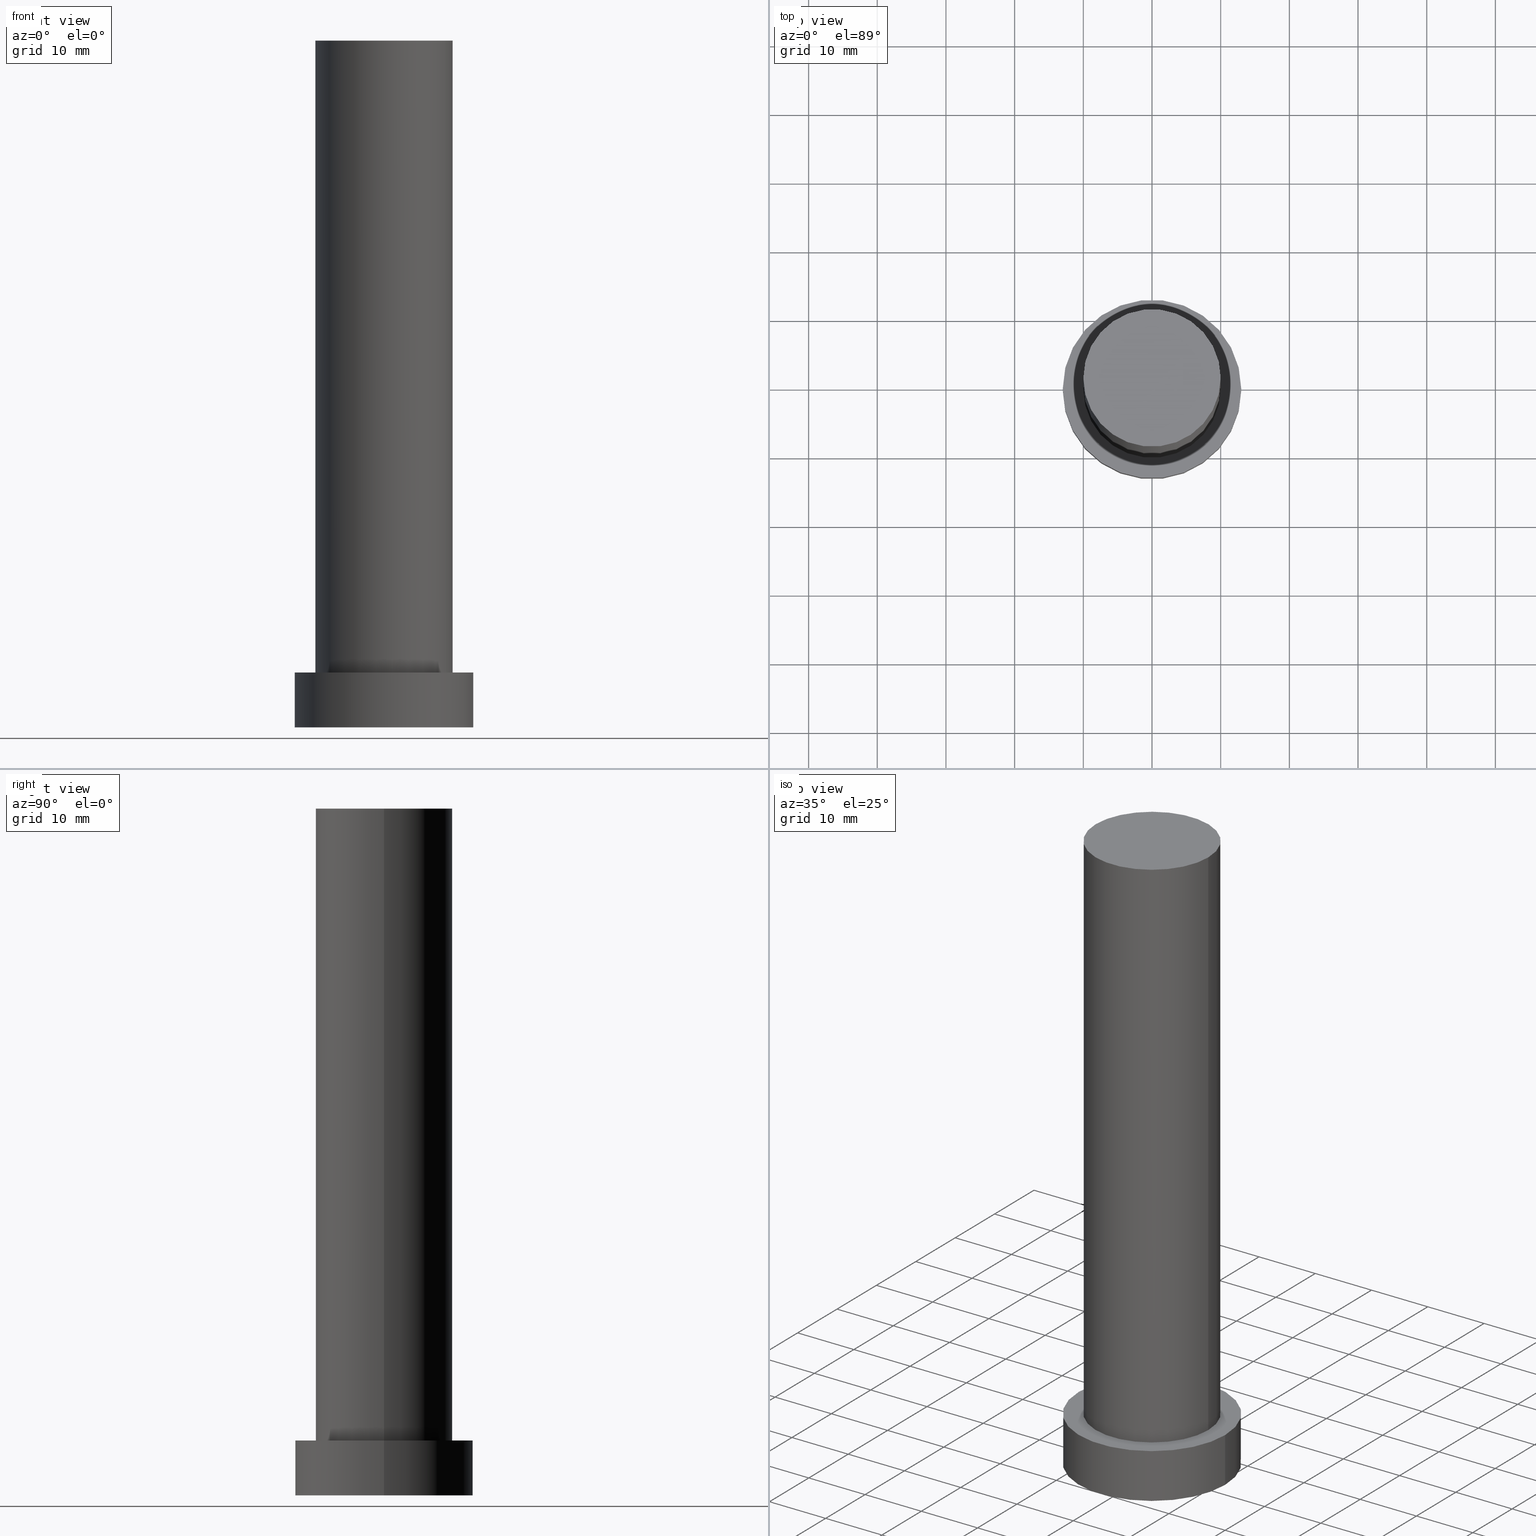
[diagram: canonical four-view strip — front | top / right | iso, engineering-drawing reading convention]
A machine part, canonical four-view strip (front | top / right | iso — engineering-drawing reading convention). The complete STEP part file that produces these views, byte-faithful:
ISO-10303-21;
HEADER;
FILE_DESCRIPTION (( 'STEP AP203' ),
    '1' );
FILE_NAME ('dd8e.STEP',
    '2023-02-13T07:34:53',
    ( '' ),
    ( '' ),
    'SwSTEP 2.0',
    'SolidWorks 2019',
    '' );
FILE_SCHEMA (( 'CONFIG_CONTROL_DESIGN' ));
ENDSEC;

DATA;
#1 = CLOSED_SHELL ( 'NONE', ( #86, #241, #217, #138, #32, #99, #222 ) ) ;
#2 = DATE_AND_TIME ( #63, #94 ) ;
#3 = PERSON_AND_ORGANIZATION ( #66, #104 ) ;
#4 = AXIS2_PLACEMENT_3D ( 'NONE', #89, #137, #244 ) ;
#5 = APPROVAL_ROLE ( '' ) ;
#6 = ORIENTED_EDGE ( 'NONE', *, *, #163, .T. ) ;
#7 = VERTEX_POINT ( 'NONE', #120 ) ;
#8 = PERSON_AND_ORGANIZATION ( #66, #104 ) ;
#9 = DIRECTION ( 'NONE',  ( 1.000000000000000000, 0.000000000000000000, 0.000000000000000000 ) ) ;
#10 = LINE ( 'NONE', #71, #80 ) ;
#11 = ORIENTED_EDGE ( 'NONE', *, *, #252, .T. ) ;
#12 = CARTESIAN_POINT ( 'NONE',  ( 0.000000000000000000, 0.000000000000000000, 8.000000000000000000 ) ) ;
#13 = CARTESIAN_POINT ( 'NONE',  ( -13.00000000000000178, 0.000000000000000000, 0.000000000000000000 ) ) ;
#14 = EDGE_CURVE ( 'NONE', #55, #204, #79, .T. ) ;
#15 = DIRECTION ( 'NONE',  ( -0.000000000000000000, -0.000000000000000000, -1.000000000000000000 ) ) ;
#16 = APPROVAL ( #235, 'NEUR�EN�' ) ;
#17 = CARTESIAN_POINT ( 'NONE',  ( 0.000000000000000000, 0.000000000000000000, 0.000000000000000000 ) ) ;
#18 = EDGE_CURVE ( 'NONE', #179, #55, #141, .T. ) ;
#19 = CC_DESIGN_PERSON_AND_ORGANIZATION_ASSIGNMENT ( #237, #106, ( #132 ) ) ;
#20 = DIRECTION ( 'NONE',  ( 1.000000000000000000, 0.000000000000000000, 0.000000000000000000 ) ) ;
#21 = CIRCLE ( 'NONE', #123, 10.00000000000000000 ) ;
#22 = APPROVAL_ROLE ( '' ) ;
#23 = PERSON_AND_ORGANIZATION ( #66, #104 ) ;
#24 = AXIS2_PLACEMENT_3D ( 'NONE', #186, #31, #188 ) ;
#25 = DATE_TIME_ROLE ( 'creation_date' ) ;
#26 = MANIFOLD_SOLID_BREP ( 'P�idat vysunut�m3', #1 ) ;
#27 = CARTESIAN_POINT ( 'NONE',  ( 0.000000000000000000, 0.000000000000000000, 8.000000000000000000 ) ) ;
#28 = FACE_OUTER_BOUND ( 'NONE', #140, .T. ) ;
#29 = CARTESIAN_POINT ( 'NONE',  ( 10.00000000000000000, 1.224646799147353256E-15, 8.000000000000000000 ) ) ;
#30 = PRODUCT_DEFINITION_SHAPE ( 'NONE', 'NONE',  #132 ) ;
#31 = DIRECTION ( 'NONE',  ( 0.000000000000000000, 0.000000000000000000, 1.000000000000000000 ) ) ;
#32 = ADVANCED_FACE ( 'NONE', ( #210 ), #254, .F. ) ;
#33 = ORIENTED_EDGE ( 'NONE', *, *, #170, .T. ) ;
#34 = DIRECTION ( 'NONE',  ( -0.000000000000000000, -0.000000000000000000, -1.000000000000000000 ) ) ;
#35 = EDGE_CURVE ( 'NONE', #238, #204, #100, .T. ) ;
#36 = ORIENTED_EDGE ( 'NONE', *, *, #39, .F. ) ;
#37 = ORIENTED_EDGE ( 'NONE', *, *, #14, .T. ) ;
#38 =( GEOMETRIC_REPRESENTATION_CONTEXT ( 3 ) GLOBAL_UNCERTAINTY_ASSIGNED_CONTEXT ( ( #215 ) ) GLOBAL_UNIT_ASSIGNED_CONTEXT ( ( #150, #130, #133 ) ) REPRESENTATION_CONTEXT ( 'NONE', 'WORKASPACE' ) );
#39 = EDGE_CURVE ( 'NONE', #77, #228, #21, .T. ) ;
#40 = PERSON_AND_ORGANIZATION_ROLE ( 'creator' ) ;
#41 = CC_DESIGN_PERSON_AND_ORGANIZATION_ASSIGNMENT ( #60, #84, ( #165 ) ) ;
#42 = PERSON_AND_ORGANIZATION_ROLE ( 'design_owner' ) ;
#43 = DATE_AND_TIME ( #81, #226 ) ;
#44 = CALENDAR_DATE ( 2023, 13, 2 ) ;
#45 = SHAPE_DEFINITION_REPRESENTATION ( #30, #102 ) ;
#46 = DIRECTION ( 'NONE',  ( -0.000000000000000000, -0.000000000000000000, -1.000000000000000000 ) ) ;
#47 = AXIS2_PLACEMENT_3D ( 'NONE', #183, #249, #153 ) ;
#48 = VERTEX_POINT ( 'NONE', #253 ) ;
#49 = CARTESIAN_POINT ( 'NONE',  ( 0.000000000000000000, 0.000000000000000000, 0.000000000000000000 ) ) ;
#50 = CARTESIAN_POINT ( 'NONE',  ( 0.000000000000000000, 0.000000000000000000, 8.000000000000000000 ) ) ;
#51 = DIRECTION ( 'NONE',  ( -1.000000000000000000, 0.000000000000000000, 0.000000000000000000 ) ) ;
#52 = CC_DESIGN_SECURITY_CLASSIFICATION ( #165, ( #69 ) ) ;
#53 = CARTESIAN_POINT ( 'NONE',  ( 0.000000000000000000, 0.000000000000000000, 100.0000000000000000 ) ) ;
#54 = ORIENTED_EDGE ( 'NONE', *, *, #245, .T. ) ;
#55 = VERTEX_POINT ( 'NONE', #121 ) ;
#56 = AXIS2_PLACEMENT_3D ( 'NONE', #67, #46, #51 ) ;
#57 = DATE_TIME_ROLE ( 'classification_date' ) ;
#58 = PRODUCT_RELATED_PRODUCT_CATEGORY ( 'detail', '', ( #119 ) ) ;
#59 = AXIS2_PLACEMENT_3D ( 'NONE', #27, #182, #9 ) ;
#60 = PERSON_AND_ORGANIZATION ( #66, #104 ) ;
#61 = EDGE_LOOP ( 'NONE', ( #113, #108, #98, #192 ) ) ;
#62 = PERSON_AND_ORGANIZATION ( #66, #104 ) ;
#63 = CALENDAR_DATE ( 2023, 13, 2 ) ;
#64 = ORIENTED_EDGE ( 'NONE', *, *, #195, .T. ) ;
#65 = DIRECTION ( 'NONE',  ( 0.000000000000000000, 0.000000000000000000, 1.000000000000000000 ) ) ;
#66 = PERSON ( 'NEUR�EN�', 'NEUR�EN�', 'NEUR�EN�', ('NEUR�EN�'), ('NEUR�EN�'), ('NEUR�EN�') ) ;
#67 = CARTESIAN_POINT ( 'NONE',  ( 0.000000000000000000, 0.000000000000000000, 8.000000000000000000 ) ) ;
#68 = DIRECTION ( 'NONE',  ( -0.000000000000000000, -0.000000000000000000, -1.000000000000000000 ) ) ;
#69 = PRODUCT_DEFINITION_FORMATION_WITH_SPECIFIED_SOURCE ( 'LIBOVOLN�', '', #119, .NOT_KNOWN. ) ;
#70 = ORIENTED_EDGE ( 'NONE', *, *, #128, .F. ) ;
#71 = CARTESIAN_POINT ( 'NONE',  ( -13.00000000000000178, 0.000000000000000000, 8.000000000000000000 ) ) ;
#72 = DIRECTION ( 'NONE',  ( 1.000000000000000000, 0.000000000000000000, -0.000000000000000000 ) ) ;
#73 = FACE_OUTER_BOUND ( 'NONE', #149, .T. ) ;
#74 = CIRCLE ( 'NONE', #59, 10.00000000000000000 ) ;
#75 = FACE_OUTER_BOUND ( 'NONE', #88, .T. ) ;
#76 = AXIS2_PLACEMENT_3D ( 'NONE', #49, #87, #115 ) ;
#77 = VERTEX_POINT ( 'NONE', #251 ) ;
#78 = DIRECTION ( 'NONE',  ( 1.000000000000000000, 0.000000000000000000, -0.000000000000000000 ) ) ;
#79 = LINE ( 'NONE', #97, #246 ) ;
#80 = VECTOR ( 'NONE', #207, 1000.000000000000000 ) ;
#81 = CALENDAR_DATE ( 2023, 13, 2 ) ;
#82 = APPROVAL_DATE_TIME ( #43, #198 ) ;
#83 = APPROVAL ( #127, 'NEUR�EN�' ) ;
#84 = PERSON_AND_ORGANIZATION_ROLE ( 'classification_officer' ) ;
#85 = EDGE_LOOP ( 'NONE', ( #212, #6, #11, #142 ) ) ;
#86 = ADVANCED_FACE ( 'NONE', ( #177 ), #255, .T. ) ;
#87 = DIRECTION ( 'NONE',  ( 0.000000000000000000, 0.000000000000000000, 1.000000000000000000 ) ) ;
#88 = EDGE_LOOP ( 'NONE', ( #173, #139, #211, #157 ) ) ;
#89 = CARTESIAN_POINT ( 'NONE',  ( 0.000000000000000000, 0.000000000000000000, 100.0000000000000000 ) ) ;
#90 = CIRCLE ( 'NONE', #203, 10.00000000000000000 ) ;
#91 = CARTESIAN_POINT ( 'NONE',  ( 0.000000000000000000, 0.000000000000000000, 100.0000000000000000 ) ) ;
#92 = PLANE ( 'NONE',  #131 ) ;
#93 = DIRECTION ( 'NONE',  ( 0.000000000000000000, 0.000000000000000000, 1.000000000000000000 ) ) ;
#94 = LOCAL_TIME ( 8, 34, 53.00000000000000000, #109 ) ;
#95 = DIRECTION ( 'NONE',  ( 1.000000000000000000, 0.000000000000000000, 0.000000000000000000 ) ) ;
#96 = AXIS2_PLACEMENT_3D ( 'NONE', #53, #114, #112 ) ;
#97 = CARTESIAN_POINT ( 'NONE',  ( 13.00000000000000178, 1.592040838891559293E-15, 8.000000000000000000 ) ) ;
#98 = ORIENTED_EDGE ( 'NONE', *, *, #187, .T. ) ;
#99 = ADVANCED_FACE ( 'NONE', ( #75 ), #156, .T. ) ;
#100 = CIRCLE ( 'NONE', #239, 13.00000000000000178 ) ;
#101 = AXIS2_PLACEMENT_3D ( 'NONE', #12, #68, #171 ) ;
#102 = ADVANCED_BREP_SHAPE_REPRESENTATION ( 'dd8e', ( #26, #124 ), #38 ) ;
#103 = PERSON_AND_ORGANIZATION ( #66, #104 ) ;
#104 = ORGANIZATION ( 'NEUR�EN�', 'NEUR�EN�', '' ) ;
#105 = AXIS2_PLACEMENT_3D ( 'NONE', #227, #15, #172 ) ;
#106 = PERSON_AND_ORGANIZATION_ROLE ( 'creator' ) ;
#107 = CALENDAR_DATE ( 2023, 13, 2 ) ;
#108 = ORIENTED_EDGE ( 'NONE', *, *, #18, .F. ) ;
#109 = COORDINATED_UNIVERSAL_TIME_OFFSET ( 1, 0, .AHEAD. ) ;
#110 = CARTESIAN_POINT ( 'NONE',  ( 13.00000000000000178, 1.592040838891559293E-15, 0.000000000000000000 ) ) ;
#111 = CC_DESIGN_APPROVAL ( #83, ( #69 ) ) ;
#112 = DIRECTION ( 'NONE',  ( -1.000000000000000000, 0.000000000000000000, 0.000000000000000000 ) ) ;
#113 = ORIENTED_EDGE ( 'NONE', *, *, #14, .F. ) ;
#114 = DIRECTION ( 'NONE',  ( -0.000000000000000000, -0.000000000000000000, -1.000000000000000000 ) ) ;
#115 = DIRECTION ( 'NONE',  ( 1.000000000000000000, 0.000000000000000000, 0.000000000000000000 ) ) ;
#116 = CARTESIAN_POINT ( 'NONE',  ( 0.000000000000000000, 0.000000000000000000, 8.000000000000000000 ) ) ;
#117 = ORIENTED_EDGE ( 'NONE', *, *, #128, .T. ) ;
#118 = ORIENTED_EDGE ( 'NONE', *, *, #187, .F. ) ;
#119 = PRODUCT ( 'dd8e', 'dd8e', '', ( #218 ) ) ;
#120 = CARTESIAN_POINT ( 'NONE',  ( 10.00000000000000000, 1.224646799147353256E-15, 100.0000000000000000 ) ) ;
#121 = CARTESIAN_POINT ( 'NONE',  ( 13.00000000000000178, 1.592040838891559293E-15, 8.000000000000000000 ) ) ;
#122 = EDGE_CURVE ( 'NONE', #48, #77, #224, .T. ) ;
#123 = AXIS2_PLACEMENT_3D ( 'NONE', #116, #93, #95 ) ;
#124 = AXIS2_PLACEMENT_3D ( 'NONE', #199, #65, #164 ) ;
#125 = APPLICATION_PROTOCOL_DEFINITION ( 'international standard', 'config_control_design', 1994, #176 ) ;
#126 = DESIGN_CONTEXT ( 'detailed design', #176, 'design' ) ;
#127 = APPROVAL_STATUS ( 'not_yet_approved' ) ;
#128 = EDGE_CURVE ( 'NONE', #55, #179, #143, .T. ) ;
#129 = COORDINATED_UNIVERSAL_TIME_OFFSET ( 1, 0, .AHEAD. ) ;
#130 =( NAMED_UNIT ( * ) PLANE_ANGLE_UNIT ( ) SI_UNIT ( $, .RADIAN. ) );
#131 = AXIS2_PLACEMENT_3D ( 'NONE', #50, #250, #72 ) ;
#132 = PRODUCT_DEFINITION ( 'NEZN�M�', '', #69, #126 ) ;
#133 =( NAMED_UNIT ( * ) SI_UNIT ( $, .STERADIAN. ) SOLID_ANGLE_UNIT ( ) );
#134 = CARTESIAN_POINT ( 'NONE',  ( -13.00000000000000178, 0.000000000000000000, 8.000000000000000000 ) ) ;
#135 = FACE_BOUND ( 'NONE', #243, .T. ) ;
#136 = AXIS2_PLACEMENT_3D ( 'NONE', #190, #193, #78 ) ;
#137 = DIRECTION ( 'NONE',  ( 0.000000000000000000, 0.000000000000000000, 1.000000000000000000 ) ) ;
#138 = ADVANCED_FACE ( 'NONE', ( #135, #151 ), #92, .T. ) ;
#139 = ORIENTED_EDGE ( 'NONE', *, *, #245, .F. ) ;
#140 = EDGE_LOOP ( 'NONE', ( #70, #37, #33, #118 ) ) ;
#141 = CIRCLE ( 'NONE', #209, 13.00000000000000178 ) ;
#142 = ORIENTED_EDGE ( 'NONE', *, *, #122, .F. ) ;
#143 = CIRCLE ( 'NONE', #47, 13.00000000000000178 ) ;
#144 = COORDINATED_UNIVERSAL_TIME_OFFSET ( 1, 0, .AHEAD. ) ;
#145 = APPROVAL_ROLE ( '' ) ;
#146 = APPROVAL_DATE_TIME ( #2, #16 ) ;
#147 = ORIENTED_EDGE ( 'NONE', *, *, #18, .T. ) ;
#148 = APPROVAL_STATUS ( 'not_yet_approved' ) ;
#149 = EDGE_LOOP ( 'NONE', ( #54, #64 ) ) ;
#150 =( LENGTH_UNIT ( ) NAMED_UNIT ( * ) SI_UNIT ( .MILLI., .METRE. ) );
#151 = FACE_OUTER_BOUND ( 'NONE', #185, .T. ) ;
#152 = CC_DESIGN_APPROVAL ( #198, ( #132 ) ) ;
#153 = DIRECTION ( 'NONE',  ( 1.000000000000000000, 0.000000000000000000, 0.000000000000000000 ) ) ;
#154 = PLANE ( 'NONE',  #24 ) ;
#155 = DIRECTION ( 'NONE',  ( 0.000000000000000000, 0.000000000000000000, 1.000000000000000000 ) ) ;
#156 = CYLINDRICAL_SURFACE ( 'NONE', #96, 10.00000000000000000 ) ;
#157 = ORIENTED_EDGE ( 'NONE', *, *, #39, .T. ) ;
#158 = DIRECTION ( 'NONE',  ( 0.000000000000000000, 0.000000000000000000, 1.000000000000000000 ) ) ;
#159 = DIRECTION ( 'NONE',  ( 0.000000000000000000, 0.000000000000000000, 1.000000000000000000 ) ) ;
#160 = VECTOR ( 'NONE', #202, 1000.000000000000000 ) ;
#161 = PERSON_AND_ORGANIZATION ( #66, #104 ) ;
#162 = SECURITY_CLASSIFICATION_LEVEL ( 'unclassified' ) ;
#163 = EDGE_CURVE ( 'NONE', #7, #228, #208, .T. ) ;
#164 = DIRECTION ( 'NONE',  ( 1.000000000000000000, 0.000000000000000000, 0.000000000000000000 ) ) ;
#165 = SECURITY_CLASSIFICATION ( '', '', #162 ) ;
#166 = CYLINDRICAL_SURFACE ( 'NONE', #101, 13.00000000000000178 ) ;
#167 = CYLINDRICAL_SURFACE ( 'NONE', #56, 13.00000000000000178 ) ;
#168 = CC_DESIGN_PERSON_AND_ORGANIZATION_ASSIGNMENT ( #8, #40, ( #69 ) ) ;
#169 = DIRECTION ( 'NONE',  ( -0.000000000000000000, -0.000000000000000000, -1.000000000000000000 ) ) ;
#170 = EDGE_CURVE ( 'NONE', #204, #238, #191, .T. ) ;
#171 = DIRECTION ( 'NONE',  ( -1.000000000000000000, 0.000000000000000000, 0.000000000000000000 ) ) ;
#172 = DIRECTION ( 'NONE',  ( -1.000000000000000000, 0.000000000000000000, 0.000000000000000000 ) ) ;
#173 = ORIENTED_EDGE ( 'NONE', *, *, #163, .F. ) ;
#174 = CC_DESIGN_PERSON_AND_ORGANIZATION_ASSIGNMENT ( #23, #42, ( #119 ) ) ;
#175 = CARTESIAN_POINT ( 'NONE',  ( 0.000000000000000000, 0.000000000000000000, 8.000000000000000000 ) ) ;
#176 = APPLICATION_CONTEXT ( 'configuration controlled 3d designs of mechanical parts and assemblies' ) ;
#177 = FACE_OUTER_BOUND ( 'NONE', #85, .T. ) ;
#178 = DATE_AND_TIME ( #220, #200 ) ;
#179 = VERTEX_POINT ( 'NONE', #134 ) ;
#180 = COORDINATED_UNIVERSAL_TIME_OFFSET ( 1, 0, .AHEAD. ) ;
#181 = DATE_AND_TIME ( #107, #230 ) ;
#182 = DIRECTION ( 'NONE',  ( 0.000000000000000000, 0.000000000000000000, 1.000000000000000000 ) ) ;
#183 = CARTESIAN_POINT ( 'NONE',  ( 0.000000000000000000, 0.000000000000000000, 8.000000000000000000 ) ) ;
#184 = EDGE_LOOP ( 'NONE', ( #229, #189 ) ) ;
#185 = EDGE_LOOP ( 'NONE', ( #147, #117 ) ) ;
#186 = CARTESIAN_POINT ( 'NONE',  ( 0.000000000000000000, 0.000000000000000000, 100.0000000000000000 ) ) ;
#187 = EDGE_CURVE ( 'NONE', #179, #238, #10, .T. ) ;
#188 = DIRECTION ( 'NONE',  ( 1.000000000000000000, 0.000000000000000000, -0.000000000000000000 ) ) ;
#189 = ORIENTED_EDGE ( 'NONE', *, *, #170, .F. ) ;
#190 = CARTESIAN_POINT ( 'NONE',  ( 0.000000000000000000, 0.000000000000000000, 0.000000000000000000 ) ) ;
#191 = CIRCLE ( 'NONE', #76, 13.00000000000000178 ) ;
#192 = ORIENTED_EDGE ( 'NONE', *, *, #35, .T. ) ;
#193 = DIRECTION ( 'NONE',  ( 0.000000000000000000, 0.000000000000000000, 1.000000000000000000 ) ) ;
#194 = CC_DESIGN_DATE_AND_TIME_ASSIGNMENT ( #178, #57, ( #165 ) ) ;
#195 = EDGE_CURVE ( 'NONE', #7, #48, #231, .T. ) ;
#196 = CC_DESIGN_DATE_AND_TIME_ASSIGNMENT ( #216, #25, ( #132 ) ) ;
#197 = APPROVAL_DATE_TIME ( #181, #83 ) ;
#198 = APPROVAL ( #148, 'NEUR�EN�' ) ;
#199 = CARTESIAN_POINT ( 'NONE',  ( 0.000000000000000000, 0.000000000000000000, 0.000000000000000000 ) ) ;
#200 = LOCAL_TIME ( 8, 34, 53.00000000000000000, #144 ) ;
#201 = COORDINATED_UNIVERSAL_TIME_OFFSET ( 1, 0, .AHEAD. ) ;
#202 = DIRECTION ( 'NONE',  ( -0.000000000000000000, -0.000000000000000000, -1.000000000000000000 ) ) ;
#203 = AXIS2_PLACEMENT_3D ( 'NONE', #91, #155, #225 ) ;
#204 = VERTEX_POINT ( 'NONE', #110 ) ;
#205 = VECTOR ( 'NONE', #169, 1000.000000000000000 ) ;
#206 = CC_DESIGN_PERSON_AND_ORGANIZATION_ASSIGNMENT ( #103, #234, ( #69 ) ) ;
#207 = DIRECTION ( 'NONE',  ( -0.000000000000000000, -0.000000000000000000, -1.000000000000000000 ) ) ;
#208 = LINE ( 'NONE', #247, #160 ) ;
#209 = AXIS2_PLACEMENT_3D ( 'NONE', #175, #159, #20 ) ;
#210 = FACE_OUTER_BOUND ( 'NONE', #184, .T. ) ;
#211 = ORIENTED_EDGE ( 'NONE', *, *, #122, .T. ) ;
#212 = ORIENTED_EDGE ( 'NONE', *, *, #195, .F. ) ;
#213 = LOCAL_TIME ( 8, 34, 53.00000000000000000, #180 ) ;
#214 = DIRECTION ( 'NONE',  ( 1.000000000000000000, 0.000000000000000000, 0.000000000000000000 ) ) ;
#215 = UNCERTAINTY_MEASURE_WITH_UNIT (LENGTH_MEASURE( 1.000000000000000082E-05 ), #150, 'distance_accuracy_value', 'NONE');
#216 = DATE_AND_TIME ( #44, #213 ) ;
#217 = ADVANCED_FACE ( 'NONE', ( #242 ), #167, .T. ) ;
#218 = MECHANICAL_CONTEXT ( 'NONE', #221, 'mechanical' ) ;
#219 = CC_DESIGN_APPROVAL ( #16, ( #165 ) ) ;
#220 = CALENDAR_DATE ( 2023, 13, 2 ) ;
#221 = APPLICATION_CONTEXT ( 'configuration controlled 3d designs of mechanical parts and assemblies' ) ;
#222 = ADVANCED_FACE ( 'NONE', ( #73 ), #154, .T. ) ;
#223 = CARTESIAN_POINT ( 'NONE',  ( -10.00000000000000000, 0.000000000000000000, 100.0000000000000000 ) ) ;
#224 = LINE ( 'NONE', #223, #205 ) ;
#225 = DIRECTION ( 'NONE',  ( 1.000000000000000000, 0.000000000000000000, 0.000000000000000000 ) ) ;
#226 = LOCAL_TIME ( 8, 34, 53.00000000000000000, #129 ) ;
#227 = CARTESIAN_POINT ( 'NONE',  ( 0.000000000000000000, 0.000000000000000000, 100.0000000000000000 ) ) ;
#228 = VERTEX_POINT ( 'NONE', #29 ) ;
#229 = ORIENTED_EDGE ( 'NONE', *, *, #35, .F. ) ;
#230 = LOCAL_TIME ( 8, 34, 53.00000000000000000, #201 ) ;
#231 = CIRCLE ( 'NONE', #4, 10.00000000000000000 ) ;
#232 = APPROVAL_PERSON_ORGANIZATION ( #161, #83, #5 ) ;
#233 = APPLICATION_PROTOCOL_DEFINITION ( 'international standard', 'config_control_design', 1994, #221 ) ;
#234 = PERSON_AND_ORGANIZATION_ROLE ( 'design_supplier' ) ;
#235 = APPROVAL_STATUS ( 'not_yet_approved' ) ;
#236 = ORIENTED_EDGE ( 'NONE', *, *, #252, .F. ) ;
#237 = PERSON_AND_ORGANIZATION ( #66, #104 ) ;
#238 = VERTEX_POINT ( 'NONE', #13 ) ;
#239 = AXIS2_PLACEMENT_3D ( 'NONE', #17, #158, #214 ) ;
#240 = APPROVAL_PERSON_ORGANIZATION ( #62, #16, #145 ) ;
#241 = ADVANCED_FACE ( 'NONE', ( #28 ), #166, .T. ) ;
#242 = FACE_OUTER_BOUND ( 'NONE', #61, .T. ) ;
#243 = EDGE_LOOP ( 'NONE', ( #36, #236 ) ) ;
#244 = DIRECTION ( 'NONE',  ( 1.000000000000000000, 0.000000000000000000, 0.000000000000000000 ) ) ;
#245 = EDGE_CURVE ( 'NONE', #48, #7, #90, .T. ) ;
#246 = VECTOR ( 'NONE', #34, 1000.000000000000000 ) ;
#247 = CARTESIAN_POINT ( 'NONE',  ( 10.00000000000000000, 1.224646799147353256E-15, 100.0000000000000000 ) ) ;
#248 = APPROVAL_PERSON_ORGANIZATION ( #3, #198, #22 ) ;
#249 = DIRECTION ( 'NONE',  ( 0.000000000000000000, 0.000000000000000000, 1.000000000000000000 ) ) ;
#250 = DIRECTION ( 'NONE',  ( 0.000000000000000000, 0.000000000000000000, 1.000000000000000000 ) ) ;
#251 = CARTESIAN_POINT ( 'NONE',  ( -10.00000000000000000, 0.000000000000000000, 8.000000000000000000 ) ) ;
#252 = EDGE_CURVE ( 'NONE', #228, #77, #74, .T. ) ;
#253 = CARTESIAN_POINT ( 'NONE',  ( -10.00000000000000000, 0.000000000000000000, 100.0000000000000000 ) ) ;
#254 = PLANE ( 'NONE',  #136 ) ;
#255 = CYLINDRICAL_SURFACE ( 'NONE', #105, 10.00000000000000000 ) ;
ENDSEC;
END-ISO-10303-21;
